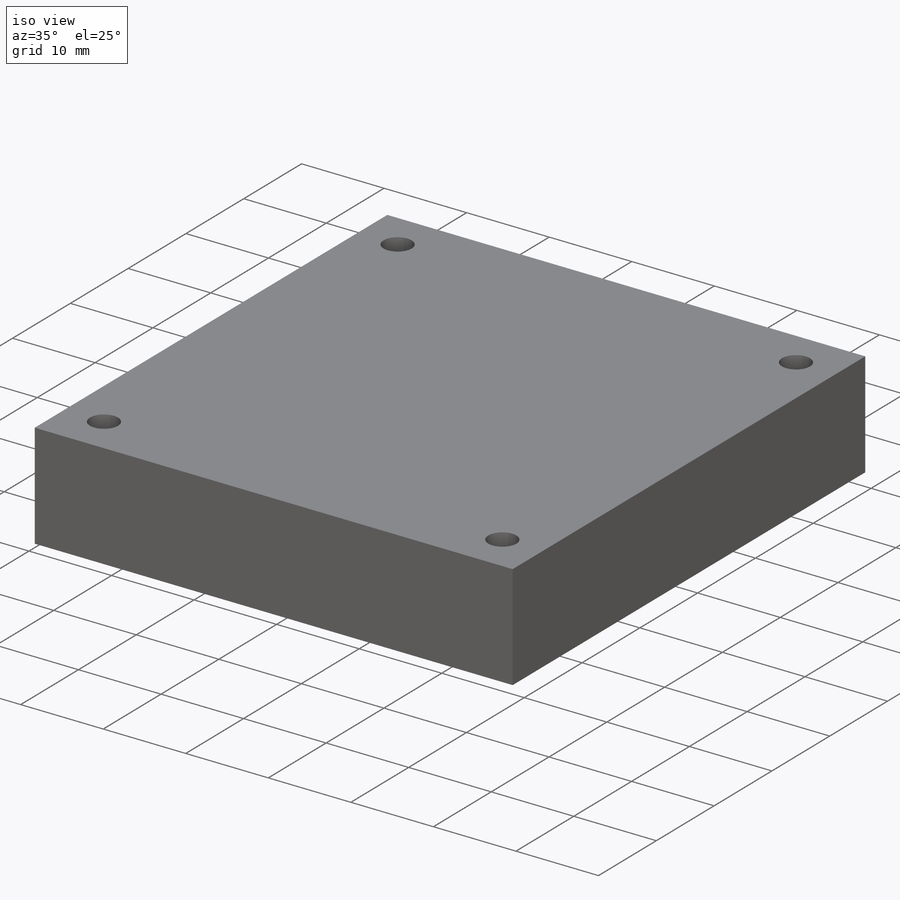
[diagram: iso view]
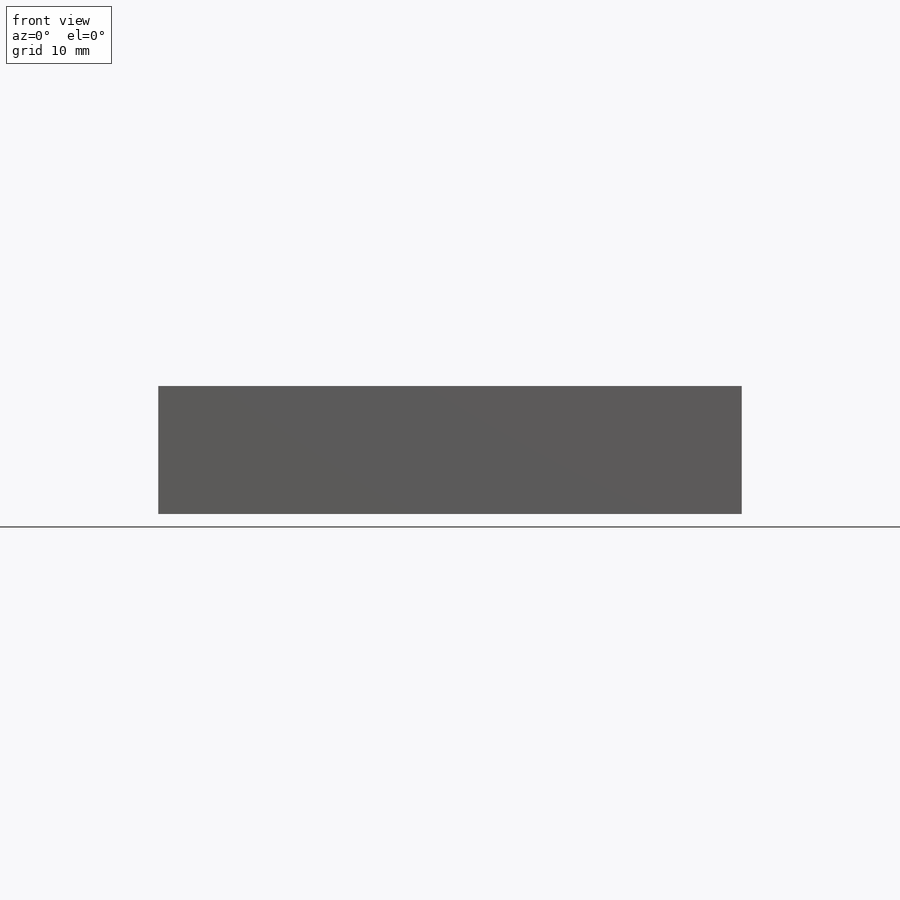
[diagram: front view]
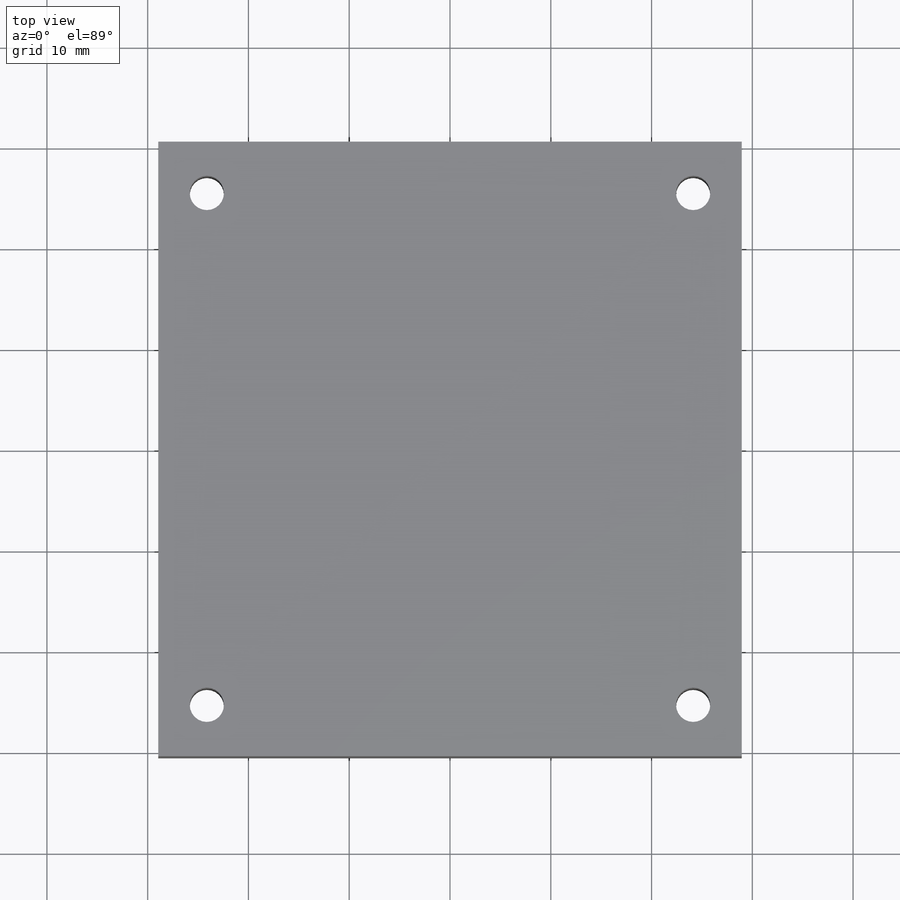
[diagram: top view]
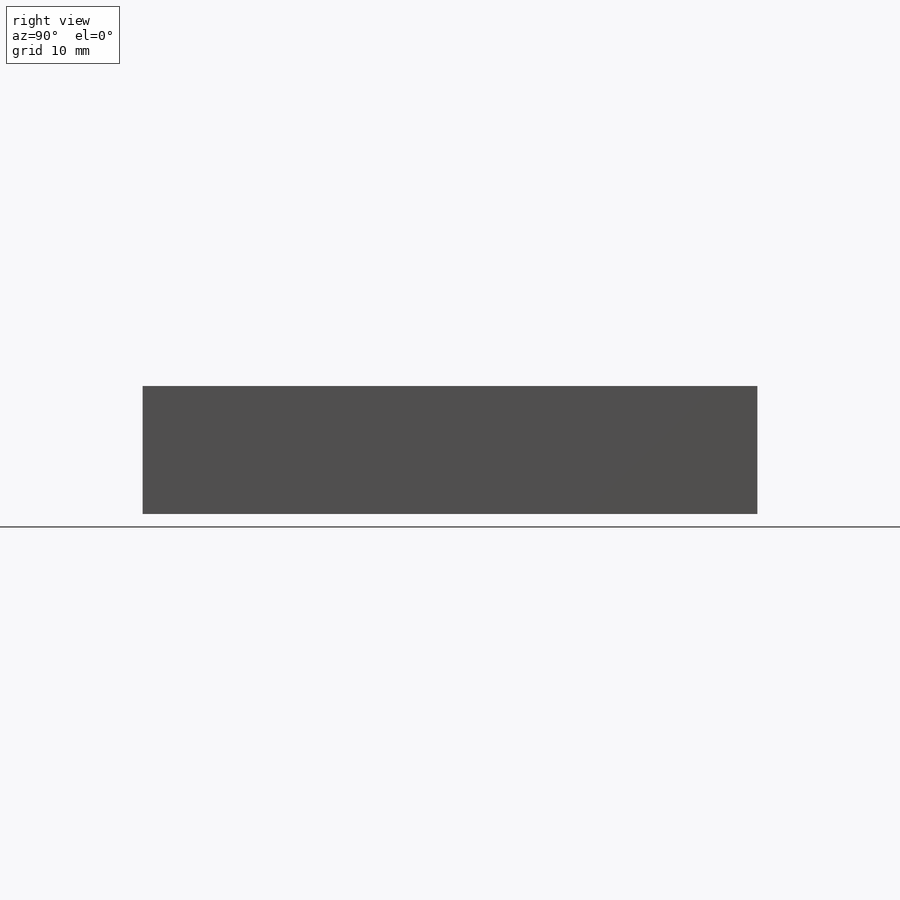
[diagram: right view]
SOLIDWORKS PART (.sldprt)
format: sldprt  version: not decoded by parser v0  size: 210,432 bytes
history: native  units: mm
features: sketch x5, material x1, extrude x1, hole x1 (+11 scaffold rows collapsed)
feature tree (19):
  scaffold x11  (default folders/planes/origin — collapsed)
  material  "Material <not specified>"
  sketch  "Sketch1"  dims[D5=2.5mm D1=28.95mm D2=57.9mm D3=30.5mm D4=61.0mm]
  extrude  "Extrude1"  Depth=12.7mm
  sketch  "Sketch10"  dims[c1.D1=1.5mm c1.D3=1.5mm c2.D1=5.1mm c2.D2=4.82mm c2.D3=48.26mm c2.D4=50.8mm c3.D3=5.1mm c3.D4=4.82mm c3.D5=5.1mm c3.D6=4.82mm c3.D7=5.1mm c3.D8=4.82mm c3.D9=50.8mm c3.D10=48.26mm]
  hole  "M3 Clearance Hole1"  Diameter=3.4mm Depth=12.7mm
  sketch  "3DSketch2"
  sketch  "Sketch12"  dims[hole-wizard template sketch: 47 standard entries collapsed; hole parameters kept: c15.Hole Depth=12.7mm c15.D3=~14.816244mm c15.Drill Angle=118.0deg]
  sketch  "Sketch13"
decode coverage: 5 of 7 modeling features carry decoded parameters
note: ~ marks probable driven/reference dimensions
note: suppression state not decoded; provenance and decode notes live in map.json
